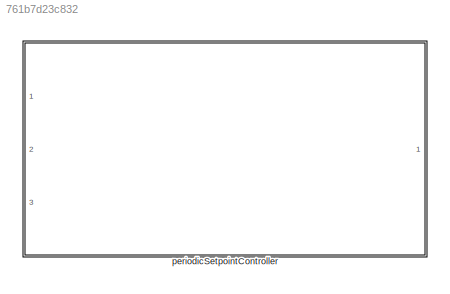
MODEL slx_761b7d23c832
KIND library
CONFIG AbsTol = auto
CONFIG EnableMultiTasking = off
CONFIG FixedStep = auto
CONFIG MaxStep = auto
CONFIG MinStep = auto
CONFIG RelTol = 1e-3
CONFIG SampleTimeConstraint = Unconstrained
CONFIG SolverName = VariableStepAuto
CONFIG StartTime = 0.0
CONFIG StopTime = 10.0
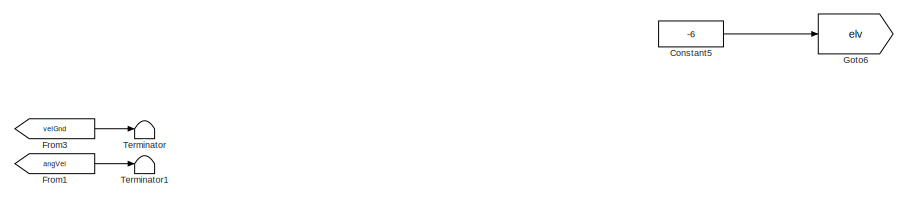
[diagram: periodicSetpointController - part 1/6, top center region]
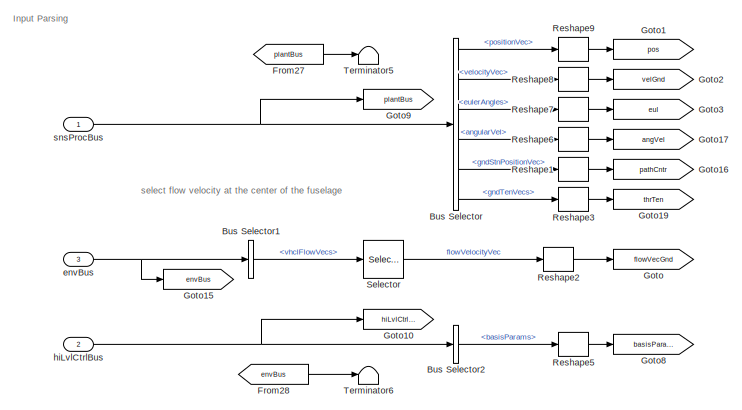
[diagram: periodicSetpointController - part 2/6, middle left region]
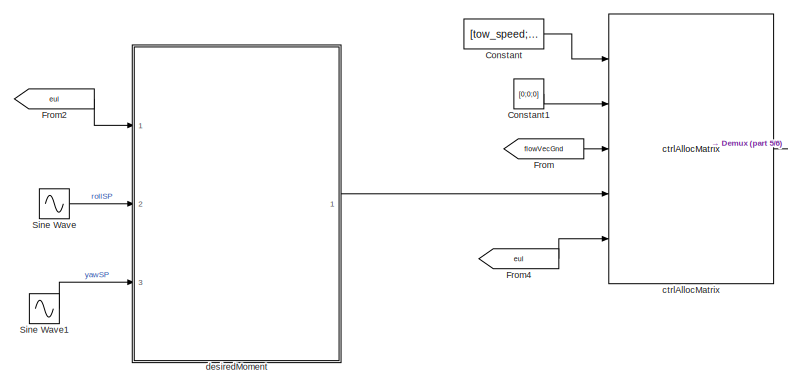
[diagram: periodicSetpointController - part 3/6, central region]
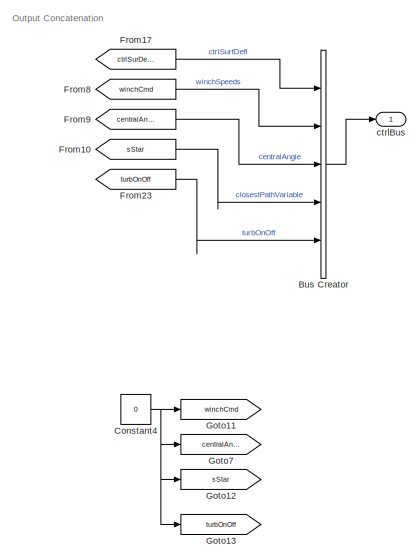
[diagram: periodicSetpointController - part 4/6, middle right region]
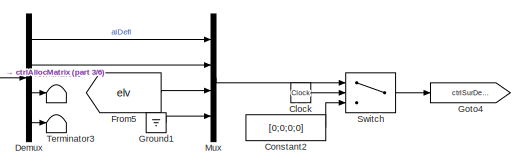
[diagram: periodicSetpointController - part 5/6, middle right region]
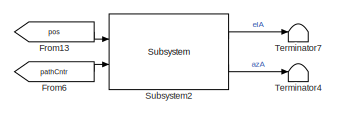
[diagram: periodicSetpointController - part 6/6, bottom center region]
BLOCK [SubSystem] periodicSetpointController
  Ports = [3, 1]
  RequestExecContextInheritance = off
  VariantControl = strcmpi(FLIGHTCONTROLLER,'periodicSetpointController')
BLOCK [BusCreator] periodicSetpointController/Bus Creator
  DisplayOption = bar
  InheritFromInputs = off
  Inputs = 5
  OutDataTypeStr = Bus: fltCtrlBus
  Ports = [5, 1]
BLOCK [BusSelector] periodicSetpointController/Bus Selector
  OutputSignals = positionVec,velocityVec,eulerAngles,angularVel,gndStnPositionVec,gndTenVecs
  Ports = [1, 6]
BLOCK [BusSelector] periodicSetpointController/Bus Selector1
  OutputSignals = vhclFlowVecs
  Ports = [1, 1]
BLOCK [BusSelector] periodicSetpointController/Bus Selector2
  OutputSignals = basisParams
  Ports = [1, 1]
BLOCK [Clock] periodicSetpointController/Clock
BLOCK [Constant] periodicSetpointController/Constant
  Value = [tow_speed;0;0]
BLOCK [Constant] periodicSetpointController/Constant1
  Value = [0;0;0]
BLOCK [Constant] periodicSetpointController/Constant2
  Value = [0;0;0;0]
BLOCK [Constant] periodicSetpointController/Constant4
  Value = 0
BLOCK [Constant] periodicSetpointController/Constant5
  Value = -6
BLOCK [Demux] periodicSetpointController/Demux
  Ports = [1, 4]
BLOCK [From] periodicSetpointController/From
  GotoTag = flowVecGnd
BLOCK [From] periodicSetpointController/From1
  GotoTag = angVel
BLOCK [From] periodicSetpointController/From10
  GotoTag = sStar
BLOCK [From] periodicSetpointController/From13
  GotoTag = pos
BLOCK [From] periodicSetpointController/From17
  GotoTag = ctrlSurDefl
BLOCK [From] periodicSetpointController/From2
  GotoTag = eul
BLOCK [From] periodicSetpointController/From23
  GotoTag = turbOnOff
BLOCK [From] periodicSetpointController/From27
  GotoTag = plantBus
BLOCK [From] periodicSetpointController/From28
  GotoTag = envBus
BLOCK [From] periodicSetpointController/From3
  GotoTag = velGnd
BLOCK [From] periodicSetpointController/From4
  GotoTag = eul
BLOCK [From] periodicSetpointController/From5
  GotoTag = elv
BLOCK [From] periodicSetpointController/From6
  GotoTag = pathCntr
BLOCK [From] periodicSetpointController/From8
  GotoTag = winchCmd
BLOCK [From] periodicSetpointController/From9
  GotoTag = centralAngle
BLOCK [Goto] periodicSetpointController/Goto
  GotoTag = flowVecGnd
BLOCK [Goto] periodicSetpointController/Goto1
  GotoTag = pos
BLOCK [Goto] periodicSetpointController/Goto10
  GotoTag = hiLvlCtrlBus
BLOCK [Goto] periodicSetpointController/Goto11
  GotoTag = winchCmd
BLOCK [Goto] periodicSetpointController/Goto12
  GotoTag = sStar
BLOCK [Goto] periodicSetpointController/Goto13
  GotoTag = turbOnOff
BLOCK [Goto] periodicSetpointController/Goto15
  GotoTag = envBus
BLOCK [Goto] periodicSetpointController/Goto16
  GotoTag = pathCntr
BLOCK [Goto] periodicSetpointController/Goto17
  GotoTag = angVel
BLOCK [Goto] periodicSetpointController/Goto19
  GotoTag = thrTen
BLOCK [Goto] periodicSetpointController/Goto2
  GotoTag = velGnd
BLOCK [Goto] periodicSetpointController/Goto3
  GotoTag = eul
BLOCK [Goto] periodicSetpointController/Goto4
  GotoTag = ctrlSurDefl
BLOCK [Goto] periodicSetpointController/Goto6
  GotoTag = elv
BLOCK [Goto] periodicSetpointController/Goto7
  GotoTag = centralAngle
BLOCK [Goto] periodicSetpointController/Goto8
  GotoTag = basisParams
BLOCK [Goto] periodicSetpointController/Goto9
  GotoTag = plantBus
BLOCK [Ground] periodicSetpointController/Ground1
BLOCK [Mux] periodicSetpointController/Mux
  DisplayOption = bar
  Ports = [4, 1]
BLOCK [Reshape] periodicSetpointController/Reshape1
  OutputDimensionality = Column vector (2-D)
  Ports = [1, 1]
BLOCK [Reshape] periodicSetpointController/Reshape2
  OutputDimensionality = Column vector (2-D)
  Ports = [1, 1]
BLOCK [Reshape] periodicSetpointController/Reshape3
  OutputDimensionality = Column vector (2-D)
  Ports = [1, 1]
BLOCK [Reshape] periodicSetpointController/Reshape5
  OutputDimensionality = Column vector (2-D)
  Ports = [1, 1]
BLOCK [Reshape] periodicSetpointController/Reshape6
  OutputDimensionality = Column vector (2-D)
  Ports = [1, 1]
BLOCK [Reshape] periodicSetpointController/Reshape7
  OutputDimensionality = Column vector (2-D)
  Ports = [1, 1]
BLOCK [Reshape] periodicSetpointController/Reshape8
  OutputDimensionality = Column vector (2-D)
  Ports = [1, 1]
BLOCK [Reshape] periodicSetpointController/Reshape9
  OutputDimensionality = Column vector (2-D)
  Ports = [1, 1]
BLOCK [Selector] periodicSetpointController/Selector
  IndexOptions = Select all,Index vector (dialog)
  Indices = [1 3],5
  InputPortWidth = 3
  NumberOfDimensions = 2
  OutputSizes = 1,1
  Ports = [1, 1]
BLOCK [Sin] periodicSetpointController/Sine Wave
  Amplitude = rollAmp
  Bias = 180
  Frequency = rollFreq
  Ports = [0, 1]
  SampleTime = 0
BLOCK [Sin] periodicSetpointController/Sine Wave1
  Amplitude = yawAmp
  Bias = pi
  Frequency = yawFreq
  Ports = [0, 1]
  SampleTime = 0
BLOCK [Reference] periodicSetpointController/Subsystem2  REF=hiToLoElevationControllerExp/hiToLoElevationControllerExp/Subsystem
  Ports = [2, 2]
  SourceBlock = hiToLoElevationControllerExp/hiToLoElevationControllerExp/Subsystem
BLOCK [Switch] periodicSetpointController/Switch
  Criteria = u2 > Threshold
  InputSameDT = off
  SaturateOnIntegerOverflow = off
  Threshold = startControl
  ZeroCross = off
BLOCK [Terminator] periodicSetpointController/Terminator
BLOCK [Terminator] periodicSetpointController/Terminator1
BLOCK [Terminator] periodicSetpointController/Terminator2
BLOCK [Terminator] periodicSetpointController/Terminator3
BLOCK [Terminator] periodicSetpointController/Terminator4
BLOCK [Terminator] periodicSetpointController/Terminator5
BLOCK [Terminator] periodicSetpointController/Terminator6
BLOCK [Terminator] periodicSetpointController/Terminator7
BLOCK [Reference] periodicSetpointController/ctrlAllocMatrix  REF=ctrlAllocMatrix_cl/ctrlAllocMatrix
  Ports = [5, 1]
  SourceBlock = ctrlAllocMatrix_cl/ctrlAllocMatrix
BLOCK [Outport] periodicSetpointController/ctrlBus
  OutDataTypeStr = Bus: fltCtrlBus
  VectorParamsAs1DForOutWhenUnconnected = off
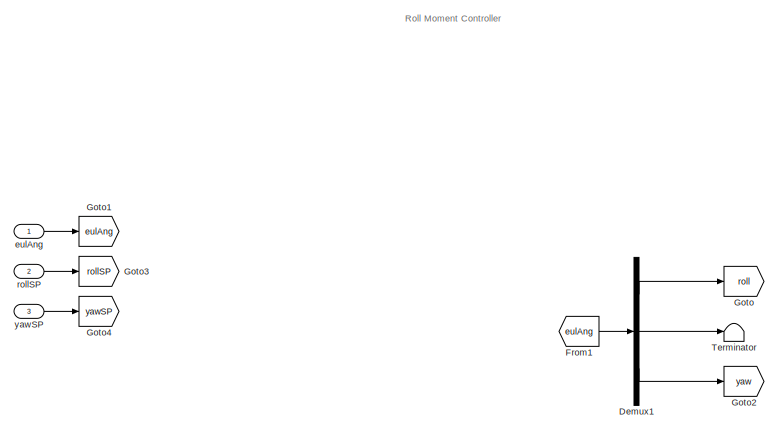
[diagram: periodicSetpointController/desiredMoment - part 1/5, top left region]
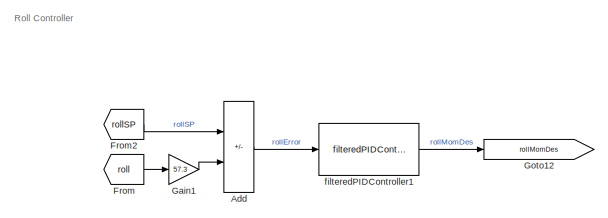
[diagram: periodicSetpointController/desiredMoment - part 2/5, top center region]
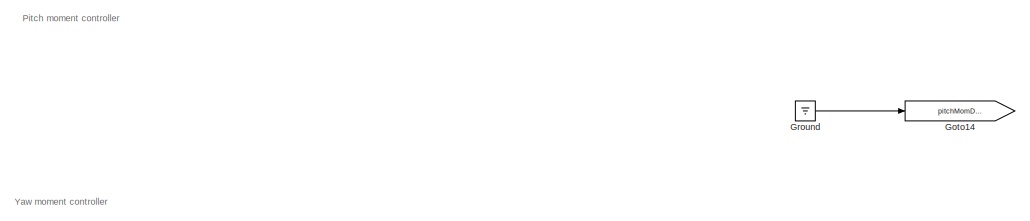
[diagram: periodicSetpointController/desiredMoment - part 3/5, bottom center region]
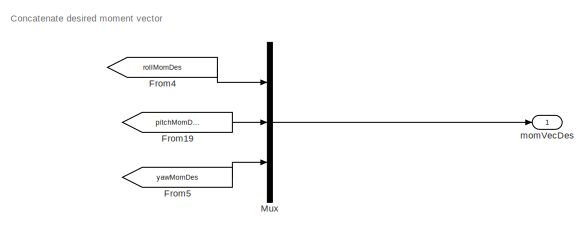
[diagram: periodicSetpointController/desiredMoment - part 4/5, bottom right region]
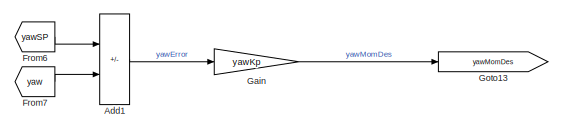
[diagram: periodicSetpointController/desiredMoment - part 5/5, bottom center region]
BLOCK [SubSystem] periodicSetpointController/desiredMoment
  Ports = [3, 1]
  RequestExecContextInheritance = off
BLOCK [Sum] periodicSetpointController/desiredMoment/Add
  IconShape = rectangular
  Inputs = +-
  Ports = [2, 1]
BLOCK [Sum] periodicSetpointController/desiredMoment/Add1
  IconShape = rectangular
  Inputs = +-
  Ports = [2, 1]
BLOCK [Demux] periodicSetpointController/desiredMoment/Demux1
  Outputs = 3
  Ports = [1, 3]
BLOCK [From] periodicSetpointController/desiredMoment/From
  GotoTag = roll
BLOCK [From] periodicSetpointController/desiredMoment/From1
  GotoTag = eulAng
BLOCK [From] periodicSetpointController/desiredMoment/From19
  GotoTag = pitchMomDes
BLOCK [From] periodicSetpointController/desiredMoment/From2
  GotoTag = rollSP
BLOCK [From] periodicSetpointController/desiredMoment/From4
  GotoTag = rollMomDes
BLOCK [From] periodicSetpointController/desiredMoment/From5
  GotoTag = yawMomDes
BLOCK [From] periodicSetpointController/desiredMoment/From6
  GotoTag = yawSP
BLOCK [From] periodicSetpointController/desiredMoment/From7
  GotoTag = yaw
BLOCK [Gain] periodicSetpointController/desiredMoment/Gain
  Gain = yawKp
BLOCK [Gain] periodicSetpointController/desiredMoment/Gain1
  Gain = 57.3
BLOCK [Goto] periodicSetpointController/desiredMoment/Goto
  GotoTag = roll
BLOCK [Goto] periodicSetpointController/desiredMoment/Goto1
  GotoTag = eulAng
BLOCK [Goto] periodicSetpointController/desiredMoment/Goto12
  GotoTag = rollMomDes
BLOCK [Goto] periodicSetpointController/desiredMoment/Goto13
  GotoTag = yawMomDes
BLOCK [Goto] periodicSetpointController/desiredMoment/Goto14
  GotoTag = pitchMomDes
BLOCK [Goto] periodicSetpointController/desiredMoment/Goto2
  GotoTag = yaw
BLOCK [Goto] periodicSetpointController/desiredMoment/Goto3
  GotoTag = rollSP
BLOCK [Goto] periodicSetpointController/desiredMoment/Goto4
  GotoTag = yawSP
BLOCK [Ground] periodicSetpointController/desiredMoment/Ground
BLOCK [Mux] periodicSetpointController/desiredMoment/Mux
  DisplayOption = bar
  Inputs = 3
  Ports = [3, 1]
BLOCK [Terminator] periodicSetpointController/desiredMoment/Terminator
BLOCK [Inport] periodicSetpointController/desiredMoment/eulAng
BLOCK [Reference] periodicSetpointController/desiredMoment/filteredPIDController1  REF=filteredPIDController_ul/filteredPIDController
  Ports = [1, 1]
  SourceBlock = filteredPIDController_ul/filteredPIDController
BLOCK [Outport] periodicSetpointController/desiredMoment/momVecDes
  VectorParamsAs1DForOutWhenUnconnected = off
BLOCK [Inport] periodicSetpointController/desiredMoment/rollSP
  Port = 2
BLOCK [Inport] periodicSetpointController/desiredMoment/yawSP
  Port = 3
BLOCK [Inport] periodicSetpointController/envBus
  OutDataTypeStr = Bus: envBus
  Port = 3
BLOCK [Inport] periodicSetpointController/hiLvlCtrlBus
  OutDataTypeStr = Bus: hiLvlCtrlBus
  Port = 2
BLOCK [Inport] periodicSetpointController/snsProcBus
  OutDataTypeStr = Bus: sensorsProcessingBus
ANNOTATION periodicSetpointController: Input Parsing
ANNOTATION periodicSetpointController: Output Concatenation
ANNOTATION periodicSetpointController: select flow velocity at the center of the fuselage
ANNOTATION periodicSetpointController/desiredMoment: Roll Controller
ANNOTATION periodicSetpointController/desiredMoment: Concatenate desired moment vector
ANNOTATION periodicSetpointController/desiredMoment: Pitch moment controller
ANNOTATION periodicSetpointController/desiredMoment: Roll Moment Controller
ANNOTATION periodicSetpointController/desiredMoment: Yaw moment controller
LINE periodicSetpointController/Bus Creator:1 -> periodicSetpointController/ctrlBus:1
LINE periodicSetpointController/Bus Selector1:1 -> periodicSetpointController/Selector:1
LINE periodicSetpointController/Bus Selector2:1 -> periodicSetpointController/Reshape5:1
LINE periodicSetpointController/Bus Selector:1 -> periodicSetpointController/Reshape9:1
LINE periodicSetpointController/Bus Selector:2 -> periodicSetpointController/Reshape8:1
LINE periodicSetpointController/Bus Selector:3 -> periodicSetpointController/Reshape7:1
LINE periodicSetpointController/Bus Selector:4 -> periodicSetpointController/Reshape6:1
LINE periodicSetpointController/Bus Selector:5 -> periodicSetpointController/Reshape1:1
LINE periodicSetpointController/Bus Selector:6 -> periodicSetpointController/Reshape3:1
LINE periodicSetpointController/Clock:1 -> periodicSetpointController/Switch:2
LINE periodicSetpointController/Constant1:1 -> periodicSetpointController/ctrlAllocMatrix:2
LINE periodicSetpointController/Constant2:1 -> periodicSetpointController/Switch:3
NET periodicSetpointController/Constant4:1 -> periodicSetpointController/Goto11:1, periodicSetpointController/Goto12:1, periodicSetpointController/Goto13:1, periodicSetpointController/Goto7:1
LINE periodicSetpointController/Constant5:1 -> periodicSetpointController/Goto6:1
LINE periodicSetpointController/Constant:1 -> periodicSetpointController/ctrlAllocMatrix:1
LINE periodicSetpointController/Demux:1 -> periodicSetpointController/Mux:1
LINE periodicSetpointController/Demux:2 -> periodicSetpointController/Mux:2
LINE periodicSetpointController/Demux:3 -> periodicSetpointController/Terminator2:1
LINE periodicSetpointController/Demux:4 -> periodicSetpointController/Terminator3:1
LINE periodicSetpointController/From10:1 -> periodicSetpointController/Bus Creator:4
LINE periodicSetpointController/From13:1 -> periodicSetpointController/Subsystem2:1
LINE periodicSetpointController/From17:1 -> periodicSetpointController/Bus Creator:1
LINE periodicSetpointController/From1:1 -> periodicSetpointController/Terminator1:1
LINE periodicSetpointController/From23:1 -> periodicSetpointController/Bus Creator:5
LINE periodicSetpointController/From27:1 -> periodicSetpointController/Terminator5:1
LINE periodicSetpointController/From28:1 -> periodicSetpointController/Terminator6:1
LINE periodicSetpointController/From2:1 -> periodicSetpointController/desiredMoment:1
LINE periodicSetpointController/From3:1 -> periodicSetpointController/Terminator:1
LINE periodicSetpointController/From4:1 -> periodicSetpointController/ctrlAllocMatrix:5
LINE periodicSetpointController/From5:1 -> periodicSetpointController/Mux:3
LINE periodicSetpointController/From6:1 -> periodicSetpointController/Subsystem2:2
LINE periodicSetpointController/From8:1 -> periodicSetpointController/Bus Creator:2
LINE periodicSetpointController/From9:1 -> periodicSetpointController/Bus Creator:3
LINE periodicSetpointController/From:1 -> periodicSetpointController/ctrlAllocMatrix:3
LINE periodicSetpointController/Ground1:1 -> periodicSetpointController/Mux:4
LINE periodicSetpointController/Mux:1 -> periodicSetpointController/Switch:1
LINE periodicSetpointController/Reshape1:1 -> periodicSetpointController/Goto16:1
LINE periodicSetpointController/Reshape2:1 -> periodicSetpointController/Goto:1
LINE periodicSetpointController/Reshape3:1 -> periodicSetpointController/Goto19:1
LINE periodicSetpointController/Reshape5:1 -> periodicSetpointController/Goto8:1
LINE periodicSetpointController/Reshape6:1 -> periodicSetpointController/Goto17:1
LINE periodicSetpointController/Reshape7:1 -> periodicSetpointController/Goto3:1
LINE periodicSetpointController/Reshape8:1 -> periodicSetpointController/Goto2:1
LINE periodicSetpointController/Reshape9:1 -> periodicSetpointController/Goto1:1
LINE periodicSetpointController/Selector:1 -> periodicSetpointController/Reshape2:1
LINE periodicSetpointController/Sine Wave1:1 -> periodicSetpointController/desiredMoment:3
LINE periodicSetpointController/Sine Wave:1 -> periodicSetpointController/desiredMoment:2
LINE periodicSetpointController/Subsystem2:1 -> periodicSetpointController/Terminator7:1
LINE periodicSetpointController/Subsystem2:2 -> periodicSetpointController/Terminator4:1
LINE periodicSetpointController/Switch:1 -> periodicSetpointController/Goto4:1
LINE periodicSetpointController/ctrlAllocMatrix:1 -> periodicSetpointController/Demux:1
LINE periodicSetpointController/desiredMoment/Add1:1 -> periodicSetpointController/desiredMoment/Gain:1
LINE periodicSetpointController/desiredMoment/Add:1 -> periodicSetpointController/desiredMoment/filteredPIDController1:1
LINE periodicSetpointController/desiredMoment/Demux1:1 -> periodicSetpointController/desiredMoment/Goto:1
LINE periodicSetpointController/desiredMoment/Demux1:2 -> periodicSetpointController/desiredMoment/Terminator:1
LINE periodicSetpointController/desiredMoment/Demux1:3 -> periodicSetpointController/desiredMoment/Goto2:1
LINE periodicSetpointController/desiredMoment/From19:1 -> periodicSetpointController/desiredMoment/Mux:2
LINE periodicSetpointController/desiredMoment/From1:1 -> periodicSetpointController/desiredMoment/Demux1:1
LINE periodicSetpointController/desiredMoment/From2:1 -> periodicSetpointController/desiredMoment/Add:1
LINE periodicSetpointController/desiredMoment/From4:1 -> periodicSetpointController/desiredMoment/Mux:1
LINE periodicSetpointController/desiredMoment/From5:1 -> periodicSetpointController/desiredMoment/Mux:3
LINE periodicSetpointController/desiredMoment/From6:1 -> periodicSetpointController/desiredMoment/Add1:1
LINE periodicSetpointController/desiredMoment/From7:1 -> periodicSetpointController/desiredMoment/Add1:2
LINE periodicSetpointController/desiredMoment/From:1 -> periodicSetpointController/desiredMoment/Gain1:1
LINE periodicSetpointController/desiredMoment/Gain1:1 -> periodicSetpointController/desiredMoment/Add:2
LINE periodicSetpointController/desiredMoment/Gain:1 -> periodicSetpointController/desiredMoment/Goto13:1
LINE periodicSetpointController/desiredMoment/Ground:1 -> periodicSetpointController/desiredMoment/Goto14:1
LINE periodicSetpointController/desiredMoment/Mux:1 -> periodicSetpointController/desiredMoment/momVecDes:1
LINE periodicSetpointController/desiredMoment/eulAng:1 -> periodicSetpointController/desiredMoment/Goto1:1
LINE periodicSetpointController/desiredMoment/filteredPIDController1:1 -> periodicSetpointController/desiredMoment/Goto12:1
LINE periodicSetpointController/desiredMoment/rollSP:1 -> periodicSetpointController/desiredMoment/Goto3:1
LINE periodicSetpointController/desiredMoment/yawSP:1 -> periodicSetpointController/desiredMoment/Goto4:1
LINE periodicSetpointController/desiredMoment:1 -> periodicSetpointController/ctrlAllocMatrix:4
NET periodicSetpointController/envBus:1 -> periodicSetpointController/Bus Selector1:1, periodicSetpointController/Goto15:1
NET periodicSetpointController/hiLvlCtrlBus:1 -> periodicSetpointController/Bus Selector2:1, periodicSetpointController/Goto10:1
NET periodicSetpointController/snsProcBus:1 -> periodicSetpointController/Bus Selector:1, periodicSetpointController/Goto9:1
note: NET lines group one-source signal fan-out (src -> all destinations, sorted); 1:1 wires keep LINE
